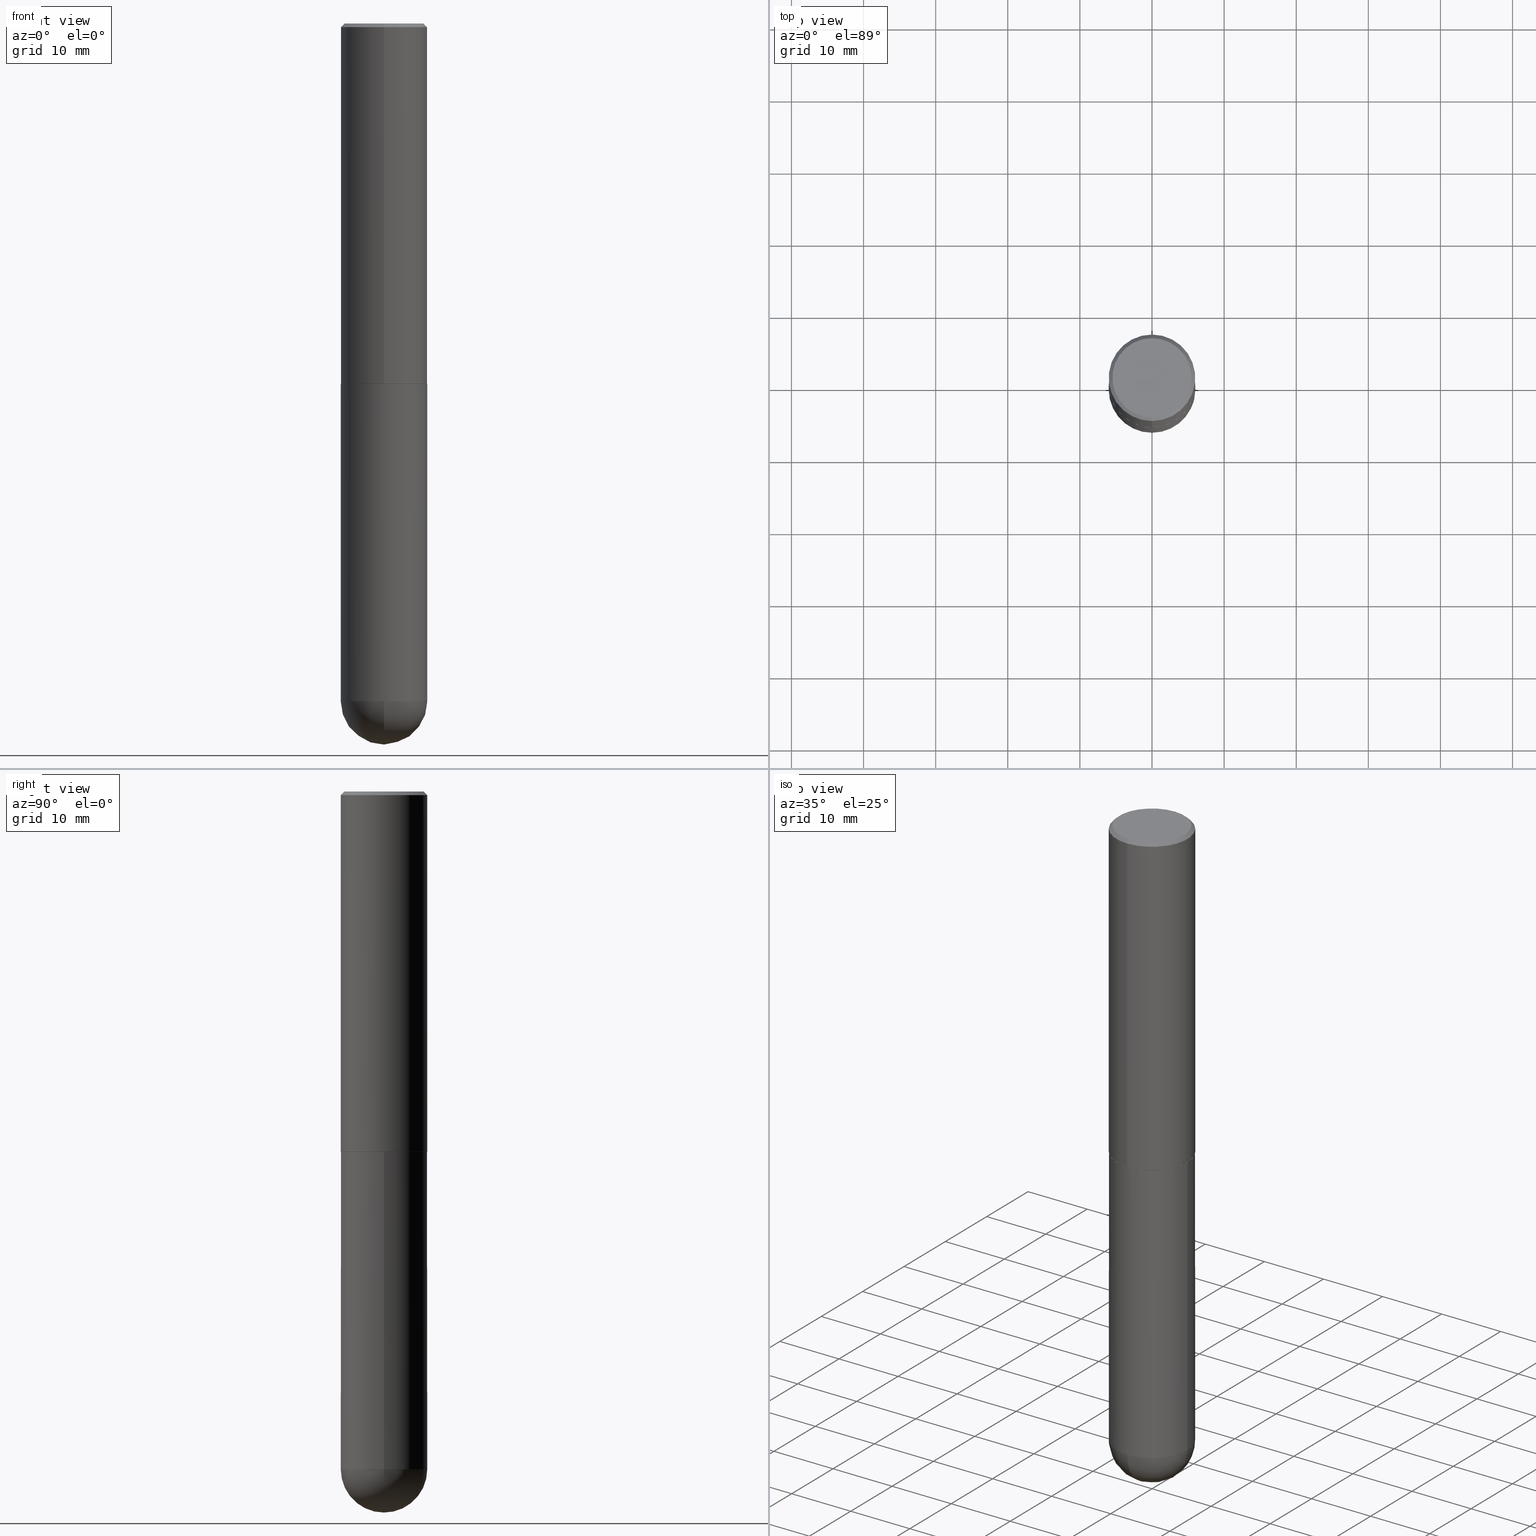
[diagram: canonical four-view strip — front | top / right | iso, engineering-drawing reading convention]
A machine part, canonical four-view strip (front | top / right | iso — engineering-drawing reading convention). The complete STEP part file that produces these views, byte-faithful:
ISO-10303-21;
HEADER;
FILE_DESCRIPTION (( 'STEP AP203' ),
    '1' );
FILE_NAME ('70539.STEP',
    '2024-04-10T12:34:48',
    ( '' ),
    ( '' ),
    'SwSTEP 2.0',
    'SolidWorks 2023',
    '' );
FILE_SCHEMA (( 'CONFIG_CONTROL_DESIGN' ));
ENDSEC;

DATA;
#1 = DIRECTION ( 'NONE',  ( -6.982962677686265922E-15, -1.000000000000000000, 3.490229039397398317E-15 ) ) ;
#2 = ORIENTED_EDGE ( 'NONE', *, *, #186, .F. ) ;
#3 = DIRECTION ( 'NONE',  ( -6.982962677686265922E-15, -1.000000000000000000, 3.487819265831411744E-15 ) ) ;
#4 = DATE_TIME_ROLE ( 'creation_date' ) ;
#5 = CIRCLE ( 'NONE', #134, 0.2361999999999999933 ) ;
#6 = APPLICATION_PROTOCOL_DEFINITION ( 'international standard', 'config_control_design', 1994, #306 ) ;
#7 = DESIGN_CONTEXT ( 'detailed design', #306, 'design' ) ;
#8 = ORIENTED_EDGE ( 'NONE', *, *, #66, .F. ) ;
#9 = EDGE_CURVE ( 'NONE', #224, #274, #254, .T. ) ;
#10 = CARTESIAN_POINT ( 'NONE',  ( 1.678301941865357183E-15, 0.2362000000000001043, -8.243920991056659143E-16 ) ) ;
#12 = PERSON_AND_ORGANIZATION ( #142, #323 ) ;
#11 = PERSON_AND_ORGANIZATION ( #142, #323 ) ;
#13 = CARTESIAN_POINT ( 'NONE',  ( -1.678301941865268633E-15, -0.2362000000000132882, -3.700799999999998757 ) ) ;
#14 = FACE_OUTER_BOUND ( 'NONE', #144, .T. ) ;
#15 = CIRCLE ( 'NONE', #105, 0.2361999999999999933 ) ;
#16 = LENGTH_MEASURE_WITH_UNIT ( LENGTH_MEASURE( 0.02539999999999999897 ), #378 );
#17 = LINE ( 'NONE', #370, #337 ) ;
#18 = AXIS2_PLACEMENT_3D ( 'NONE', #159, #232, #396 ) ;
#19 = LOCAL_TIME ( 8, 34, 48.00000000000000000, #401 ) ;
#20 = PRODUCT_DEFINITION ( 'UNKNOWN', '', #131, #7 ) ;
#21 = CARTESIAN_POINT ( 'NONE',  ( 1.509716530915770323E-15, 0.2161999999999999478, -7.440516106625514919E-16 ) ) ;
#22 = AXIS2_PLACEMENT_3D ( 'NONE', #203, #402, #272 ) ;
#23 = ORIENTED_EDGE ( 'NONE', *, *, #320, .T. ) ;
#24 = PRODUCT_RELATED_PRODUCT_CATEGORY ( 'detail', '', ( #399 ) ) ;
#25 = ORIENTED_EDGE ( 'NONE', *, *, #75, .F. ) ;
#26 = ORIENTED_EDGE ( 'NONE', *, *, #75, .T. ) ;
#27 = CARTESIAN_POINT ( 'NONE',  ( -1.649375784469449391E-15, -0.2362000000000070710, -1.967499999999999361 ) ) ;
#28 = DIRECTION ( 'NONE',  ( -2.445468806185136597E-29, 3.491481338843145583E-15, 1.000000000000000000 ) ) ;
#29 = EDGE_CURVE ( 'NONE', #176, #346, #160, .T. ) ;
#30 = DATE_AND_TIME ( #373, #19 ) ;
#31 = ORIENTED_EDGE ( 'NONE', *, *, #258, .F. ) ;
#32 = CARTESIAN_POINT ( 'NONE',  ( 1.678301941865381835E-15, 0.2361999999999933597, -1.967500000000001137 ) ) ;
#33 = EDGE_LOOP ( 'NONE', ( #115, #310 ) ) ;
#34 = DIRECTION ( 'NONE',  ( -6.982962677686265133E-15, -1.000000000000000000, 3.484499991918703113E-15 ) ) ;
#35 = EDGE_LOOP ( 'NONE', ( #241, #180, #211, #26 ) ) ;
#36 = CARTESIAN_POINT ( 'NONE',  ( 1.649375784469544054E-15, 0.2361999999999931377, -1.968500000000000805 ) ) ;
#37 = AXIS2_PLACEMENT_3D ( 'NONE', #286, #56, #225 ) ;
#38 = APPROVAL ( #395, 'UNSPECIFIED' ) ;
#39 = CALENDAR_DATE ( 2024, 10, 4 ) ;
#40 = CARTESIAN_POINT ( 'NONE',  ( -1.620449627073635079E-15, -0.2362000000000000766, -0.01999999999999922673 ) ) ;
#41 = EDGE_CURVE ( 'NONE', #82, #176, #17, .T. ) ;
#42 = APPLICATION_PROTOCOL_DEFINITION ( 'international standard', 'config_control_design', 1994, #72 ) ;
#43 = CARTESIAN_POINT ( 'NONE',  ( -1.551844647095919747E-15, -0.2161999999999999478, 7.756593336280488957E-16 ) ) ;
#44 = COORDINATED_UNIVERSAL_TIME_OFFSET ( 5, 0, .BEHIND. ) ;
#45 = FACE_OUTER_BOUND ( 'NONE', #64, .T. ) ;
#46 = DIRECTION ( 'NONE',  ( -2.445468806185136597E-29, 3.491481338843145583E-15, 1.000000000000000000 ) ) ;
#47 = PLANE ( 'NONE',  #50 ) ;
#48 = CYLINDRICAL_SURFACE ( 'NONE', #389, 0.2361999999999999933 ) ;
#49 = ADVANCED_FACE ( 'NONE', ( #74 ), #179, .T. ) ;
#50 = AXIS2_PLACEMENT_3D ( 'NONE', #406, #166, #347 ) ;
#51 = ORIENTED_EDGE ( 'NONE', *, *, #262, .T. ) ;
#52 = ORIENTED_EDGE ( 'NONE', *, *, #405, .T. ) ;
#53 = CARTESIAN_POINT ( 'NONE',  ( 1.579546157692633424E-15, 0.2161999999999999478, -7.335157030073857892E-16 ) ) ;
#54 = ADVANCED_FACE ( 'NONE', ( #45 ), #168, .T. ) ;
#55 = EDGE_LOOP ( 'NONE', ( #137, #212, #408, #25 ) ) ;
#56 = DIRECTION ( 'NONE',  ( 1.000000000000000000, -6.982962677686265922E-15, 4.883557194083112340E-29 ) ) ;
#57 = DIRECTION ( 'NONE',  ( 0.000000000000000000, 0.000000000000000000, 1.000000000000000000 ) ) ;
#58 = VERTEX_POINT ( 'NONE', #226 ) ;
#59 = DIRECTION ( 'NONE',  ( -2.446343282214230400E-29, 3.490229039397398712E-15, 1.000000000000000000 ) ) ;
#60 = PERSON_AND_ORGANIZATION_ROLE ( 'creator' ) ;
#61 = VERTEX_POINT ( 'NONE', #96 ) ;
#62 = CARTESIAN_POINT ( 'NONE',  ( -0.2361999999999999933, 1.678301941865356591E-15, -1.161852468318208757E-29 ) ) ;
#63 = CARTESIAN_POINT ( 'NONE',  ( 9.306790425912204830E-29, -1.420568132046758614E-14, -3.937000000000000277 ) ) ;
#64 = EDGE_LOOP ( 'NONE', ( #380, #52, #279, #275 ) ) ;
#65 = DIRECTION ( 'NONE',  ( -6.982962677686265922E-15, -1.000000000000000000, 3.490229039397398712E-15 ) ) ;
#66 = EDGE_CURVE ( 'NONE', #141, #84, #15, .T. ) ;
#67 = CARTESIAN_POINT ( 'NONE',  ( -1.642392821791761602E-15, -0.2352000000000068480, -1.968499999999999250 ) ) ;
#68 = CIRCLE ( 'NONE', #302, 0.2362000000000002709 ) ;
#69 = PERSON_AND_ORGANIZATION_ROLE ( 'classification_officer' ) ;
#70 = DIRECTION ( 'NONE',  ( -6.982962677686265133E-15, -1.000000000000000000, 3.469747663417773847E-15 ) ) ;
#71 = APPROVAL_ROLE ( '' ) ;
#72 = APPLICATION_CONTEXT ( 'configuration controlled 3d designs of mechanical parts and assemblies' ) ;
#73 = AXIS2_PLACEMENT_3D ( 'NONE', #116, #59, #65 ) ;
#74 = FACE_OUTER_BOUND ( 'NONE', #343, .T. ) ;
#75 = EDGE_CURVE ( 'NONE', #58, #86, #327, .T. ) ;
#76 = DIRECTION ( 'NONE',  ( 1.000000000000000000, -6.982962677686265133E-15, 0.000000000000000000 ) ) ;
#77 = AXIS2_PLACEMENT_3D ( 'NONE', #21, #132, #204 ) ;
#78 = CARTESIAN_POINT ( 'NONE',  ( 8.719071180016067419E-29, -1.339545650693076387E-14, -3.700800000000000090 ) ) ;
#79 = ORIENTED_EDGE ( 'NONE', *, *, #200, .F. ) ;
#80 = DIRECTION ( 'NONE',  ( -1.000000000000000000, 6.982962677686265922E-15, -4.876176775795935793E-29 ) ) ;
#81 = CC_DESIGN_PERSON_AND_ORGANIZATION_ASSIGNMENT ( #250, #60, ( #20 ) ) ;
#82 = VERTEX_POINT ( 'NONE', #67 ) ;
#83 = ORIENTED_EDGE ( 'NONE', *, *, #91, .F. ) ;
#84 = VERTEX_POINT ( 'NONE', #13 ) ;
#85 = CC_DESIGN_SECURITY_CLASSIFICATION ( #169, ( #131 ) ) ;
#86 = VERTEX_POINT ( 'NONE', #40 ) ;
#87 = DIRECTION ( 'NONE',  ( -6.982962677686265133E-15, -1.000000000000000000, 3.484499991918703113E-15 ) ) ;
#88 = EDGE_CURVE ( 'NONE', #220, #141, #5, .T. ) ;
#89 = COORDINATED_UNIVERSAL_TIME_OFFSET ( 5, 0, .BEHIND. ) ;
#90 = PERSON_AND_ORGANIZATION_ROLE ( 'design_supplier' ) ;
#91 = EDGE_CURVE ( 'NONE', #107, #61, #196, .T. ) ;
#92 = DIRECTION ( 'NONE',  ( -1.000000000000000000, 6.982962677686265922E-15, -4.883557194083112901E-29 ) ) ;
#93 = DIRECTION ( 'NONE',  ( 1.000000000000000000, -6.982962677686265133E-15, 0.000000000000000000 ) ) ;
#94 = AXIS2_PLACEMENT_3D ( 'NONE', #102, #110, #3 ) ;
#95 = APPROVAL_PERSON_ORGANIZATION ( #12, #163, #259 ) ;
#96 = CARTESIAN_POINT ( 'NONE',  ( 0.2361999999999999933, -8.522356799982228232E-15, -1.968500000000000139 ) ) ;
#97 = ADVANCED_FACE ( 'NONE', ( #14 ), #356, .T. ) ;
#98 = VECTOR ( 'NONE', #101, 39.37007874015748143 ) ;
#99 = FACE_OUTER_BOUND ( 'NONE', #33, .T. ) ;
#100 = DIRECTION ( 'NONE',  ( 1.000000000000000000, -6.982962677686265133E-15, 0.000000000000000000 ) ) ;
#101 = DIRECTION ( 'NONE',  ( 4.937700262164545676E-15, 0.7071067811865447972, -0.7071067811865502373 ) ) ;
#102 = CARTESIAN_POINT ( 'NONE',  ( 4.892686564428472780E-31, -6.980458078794815271E-17, -0.02000000000000005246 ) ) ;
#103 = CC_DESIGN_PERSON_AND_ORGANIZATION_ASSIGNMENT ( #136, #374, ( #399 ) ) ;
#104 = DIRECTION ( 'NONE',  ( 5.024295867789091064E-15, 0.7071067811866947883, 0.7071067811864001351 ) ) ;
#105 = AXIS2_PLACEMENT_3D ( 'NONE', #235, #368, #76 ) ;
#106 = ORIENTED_EDGE ( 'NONE', *, *, #361, .F. ) ;
#107 = VERTEX_POINT ( 'NONE', #192 ) ;
#108 = VERTEX_POINT ( 'NONE', #63 ) ;
#109 = ORIENTED_EDGE ( 'NONE', *, *, #41, .T. ) ;
#110 = DIRECTION ( 'NONE',  ( -2.446343282214230400E-29, 3.490229039397398712E-15, 1.000000000000000000 ) ) ;
#111 = ORIENTED_EDGE ( 'NONE', *, *, #158, .T. ) ;
#112 = DIRECTION ( 'NONE',  ( 2.438088387897960049E-29, -3.491481338843145188E-15, -1.000000000000000000 ) ) ;
#113 = PERSON_AND_ORGANIZATION ( #142, #323 ) ;
#114 = ADVANCED_FACE ( 'NONE', ( #288 ), #270, .T. ) ;
#115 = ORIENTED_EDGE ( 'NONE', *, *, #9, .T. ) ;
#116 = CARTESIAN_POINT ( 'NONE',  ( 0.000000000000000000, 0.000000000000000000, 0.000000000000000000 ) ) ;
#117 = CYLINDRICAL_SURFACE ( 'NONE', #143, 0.2361999999999999933 ) ;
#118 = CARTESIAN_POINT ( 'NONE',  ( 8.719071180016067419E-29, -1.339545650693076387E-14, -3.700800000000000090 ) ) ;
#119 = DIRECTION ( 'NONE',  ( -2.446343282214230400E-29, 3.490229039397398712E-15, 1.000000000000000000 ) ) ;
#121 = APPROVAL_STATUS ( 'not_yet_approved' ) ;
#120 = COORDINATED_UNIVERSAL_TIME_OFFSET ( 5, 0, .BEHIND. ) ;
#122 = DIRECTION ( 'NONE',  ( -2.446343282214230400E-29, 3.490229039397398712E-15, 1.000000000000000000 ) ) ;
#123 = DIRECTION ( 'NONE',  ( -2.445468806185136597E-29, 3.491481338843145583E-15, 1.000000000000000000 ) ) ;
#124 = ADVANCED_FACE ( 'NONE', ( #334 ), #47, .F. ) ;
#125 = DIRECTION ( 'NONE',  ( -2.446343282214230400E-29, 3.490229039397398317E-15, 1.000000000000000000 ) ) ;
#126 = CIRCLE ( 'NONE', #228, 0.2351999999999999924 ) ;
#127 = DATE_AND_TIME ( #388, #265 ) ;
#128 =( NAMED_UNIT ( * ) PLANE_ANGLE_UNIT ( ) SI_UNIT ( $, .RADIAN. ) );
#129 = CARTESIAN_POINT ( 'NONE',  ( 9.050190957929953666E-29, -1.292127413879071357E-14, -3.700800000000000090 ) ) ;
#130 = CIRCLE ( 'NONE', #161, 0.2161999999999999478 ) ;
#131 = PRODUCT_DEFINITION_FORMATION_WITH_SPECIFIED_SOURCE ( 'ANY', '', #399, .NOT_KNOWN. ) ;
#132 = DIRECTION ( 'NONE',  ( 2.446343282214230400E-29, -3.490229039397398317E-15, -1.000000000000000000 ) ) ;
#133 = ADVANCED_FACE ( 'NONE', ( #282 ), #213, .F. ) ;
#134 = AXIS2_PLACEMENT_3D ( 'NONE', #154, #391, #93 ) ;
#135 = CARTESIAN_POINT ( 'NONE',  ( -0.2361999999999999933, -8.218825635286365458E-15, -1.968500000000000139 ) ) ;
#136 = PERSON_AND_ORGANIZATION ( #142, #323 ) ;
#137 = ORIENTED_EDGE ( 'NONE', *, *, #262, .F. ) ;
#138 = ADVANCED_FACE ( 'NONE', ( #385 ), #383, .T. ) ;
#139 = CARTESIAN_POINT ( 'NONE',  ( 1.674749228186604602E-15, 0.2351999999999931368, -1.968500000000000805 ) ) ;
#140 = ORIENTED_EDGE ( 'NONE', *, *, #392, .F. ) ;
#141 = VERTEX_POINT ( 'NONE', #152 ) ;
#142 = PERSON ( 'UNSPECIFIED', 'UNSPECIFIED', 'UNSPECIFIED', ('UNSPECIFIED'), ('UNSPECIFIED'), ('UNSPECIFIED') ) ;
#143 = AXIS2_PLACEMENT_3D ( 'NONE', #313, #28, #317 ) ;
#144 = EDGE_LOOP ( 'NONE', ( #248, #148, #251, #353 ) ) ;
#145 = CYLINDRICAL_SURFACE ( 'NONE', #73, 0.2362000000000001043 ) ;
#146 = ORIENTED_EDGE ( 'NONE', *, *, #172, .T. ) ;
#147 = CARTESIAN_POINT ( 'NONE',  ( 4.813180407756499025E-29, -6.867025635014382393E-15, -1.967500000000000249 ) ) ;
#148 = ORIENTED_EDGE ( 'NONE', *, *, #186, .T. ) ;
#149 = DIRECTION ( 'NONE',  ( -4.851104656540961908E-15, -0.7071067811865496822, -0.7071067811865453523 ) ) ;
#150 = UNCERTAINTY_MEASURE_WITH_UNIT (LENGTH_MEASURE( 1.000000000000000082E-05 ), #292, 'distance_accuracy_value', 'NONE');
#151 = ORIENTED_EDGE ( 'NONE', *, *, #297, .F. ) ;
#152 = CARTESIAN_POINT ( 'NONE',  ( -0.2361999999999999933, -8.218825635286368613E-15, -3.700800000000000090 ) ) ;
#153 = CARTESIAN_POINT ( 'NONE',  ( 0.000000000000000000, 0.000000000000000000, 0.000000000000000000 ) ) ;
#154 = CARTESIAN_POINT ( 'NONE',  ( 9.050190957929953666E-29, -1.292127413879071357E-14, -3.700800000000000090 ) ) ;
#155 = EDGE_CURVE ( 'NONE', #312, #82, #126, .T. ) ;
#156 = CALENDAR_DATE ( 2024, 10, 4 ) ;
#157 = AXIS2_PLACEMENT_3D ( 'NONE', #129, #170, #100 ) ;
#158 = EDGE_CURVE ( 'NONE', #141, #381, #222, .T. ) ;
#159 = CARTESIAN_POINT ( 'NONE',  ( 4.815626751038712846E-29, -6.870515864053779706E-15, -1.968500000000000139 ) ) ;
#160 = CIRCLE ( 'NONE', #227, 0.2362000000000002153 ) ;
#161 = AXIS2_PLACEMENT_3D ( 'NONE', #202, #175, #243 ) ;
#162 = APPROVAL_PERSON_ORGANIZATION ( #113, #305, #71 ) ;
#163 = APPROVAL ( #121, 'UNSPECIFIED' ) ;
#164 = DIRECTION ( 'NONE',  ( 1.000000000000000000, -6.982962677686269077E-15, 0.000000000000000000 ) ) ;
#165 = DIRECTION ( 'NONE',  ( -6.982962677686265922E-15, -1.000000000000000000, 3.490229039397398712E-15 ) ) ;
#166 = DIRECTION ( 'NONE',  ( -2.446343282214230400E-29, 3.490229039397398317E-15, 1.000000000000000000 ) ) ;
#167 = DIRECTION ( 'NONE',  ( -7.105427357601001070E-15, -1.000000000000000000, 0.000000000000000000 ) ) ;
#168 = CONICAL_SURFACE ( 'NONE', #18, 0.2351999999999999924, 0.7853981633976532262 ) ;
#169 = SECURITY_CLASSIFICATION ( '', '', #183 ) ;
#170 = DIRECTION ( 'NONE',  ( -2.445468806185136597E-29, 3.491481338843145583E-15, 1.000000000000000000 ) ) ;
#171 = EDGE_LOOP ( 'NONE', ( #318, #184 ) ) ;
#172 = EDGE_CURVE ( 'NONE', #274, #86, #185, .T. ) ;
#173 = ORIENTED_EDGE ( 'NONE', *, *, #195, .F. ) ;
#174 = CARTESIAN_POINT ( 'NONE',  ( 4.815626751038712846E-29, -6.870515864053779706E-15, -1.968500000000000139 ) ) ;
#175 = DIRECTION ( 'NONE',  ( -2.446343282214230400E-29, 3.490229039397398712E-15, 1.000000000000000000 ) ) ;
#176 = VERTEX_POINT ( 'NONE', #27 ) ;
#177 = EDGE_LOOP ( 'NONE', ( #2, #23, #8, #216 ) ) ;
#178 = LINE ( 'NONE', #242, #338 ) ;
#179 = CONICAL_SURFACE ( 'NONE', #260, 0.2361999999999999933, 0.7853981633974479459 ) ;
#180 = ORIENTED_EDGE ( 'NONE', *, *, #9, .F. ) ;
#181 = CARTESIAN_POINT ( 'NONE',  ( 9.050190957929953666E-29, -1.292127413879071357E-14, -3.700800000000000090 ) ) ;
#182 = CARTESIAN_POINT ( 'NONE',  ( -5.154889382848865160E-46, 7.354546170893803255E-32, 2.107181531033159333E-17 ) ) ;
#183 = SECURITY_CLASSIFICATION_LEVEL ( 'unclassified' ) ;
#184 = ORIENTED_EDGE ( 'NONE', *, *, #361, .T. ) ;
#185 = LINE ( 'NONE', #319, #407 ) ;
#186 = EDGE_CURVE ( 'NONE', #108, #220, #255, .T. ) ;
#187 = VECTOR ( 'NONE', #125, 39.37007874015748143 ) ;
#188 = CC_DESIGN_APPROVAL ( #163, ( #20 ) ) ;
#189 = CARTESIAN_POINT ( 'NONE',  ( 4.813180407756499025E-29, -6.867025635014382393E-15, -1.967500000000000249 ) ) ;
#190 = EDGE_CURVE ( 'NONE', #84, #107, #372, .T. ) ;
#191 = APPROVAL_DATE_TIME ( #127, #305 ) ;
#192 = CARTESIAN_POINT ( 'NONE',  ( 0.2361999999999999933, -1.154650336162122153E-14, -3.700800000000000090 ) ) ;
#193 = FACE_OUTER_BOUND ( 'NONE', #35, .T. ) ;
#194 = CC_DESIGN_APPROVAL ( #38, ( #131 ) ) ;
#195 = EDGE_CURVE ( 'NONE', #86, #58, #218, .T. ) ;
#196 = LINE ( 'NONE', #301, #233 ) ;
#197 = CYLINDRICAL_SURFACE ( 'NONE', #314, 0.2362000000000001043 ) ;
#198 = CARTESIAN_POINT ( 'NONE',  ( 4.892686564428472780E-31, -6.980458078794815271E-17, -0.02000000000000005246 ) ) ;
#199 = FACE_OUTER_BOUND ( 'NONE', #384, .T. ) ;
#200 = EDGE_CURVE ( 'NONE', #176, #86, #178, .T. ) ;
#201 = AXIS2_PLACEMENT_3D ( 'NONE', #382, #283, #237 ) ;
#202 = CARTESIAN_POINT ( 'NONE',  ( -5.154889382848865160E-46, 7.354546170893803255E-32, 2.107181531033159333E-17 ) ) ;
#203 = CARTESIAN_POINT ( 'NONE',  ( 8.719071180016067419E-29, -1.339545650693076387E-14, -3.700800000000000090 ) ) ;
#204 = DIRECTION ( 'NONE',  ( 6.982962677686265922E-15, 1.000000000000000000, -3.490229039397398317E-15 ) ) ;
#205 = AXIS2_PLACEMENT_3D ( 'NONE', #350, #344, #87 ) ;
#206 = CC_DESIGN_PERSON_AND_ORGANIZATION_ASSIGNMENT ( #359, #223, ( #131 ) ) ;
#207 = CONICAL_SURFACE ( 'NONE', #264, 0.2361999999999999933, 0.7853981633974479459 ) ;
#208 = ADVANCED_FACE ( 'NONE', ( #412 ), #145, .T. ) ;
#209 = ORIENTED_EDGE ( 'NONE', *, *, #29, .T. ) ;
#210 = DIRECTION ( 'NONE',  ( 1.000000000000000000, -6.982962677686265133E-15, 0.000000000000000000 ) ) ;
#211 = ORIENTED_EDGE ( 'NONE', *, *, #392, .T. ) ;
#212 = ORIENTED_EDGE ( 'NONE', *, *, #258, .T. ) ;
#213 = PLANE ( 'NONE',  #400 ) ;
#214 = DIRECTION ( 'NONE',  ( 1.000000000000000000, -6.982962677686266711E-15, 4.876176775795936353E-29 ) ) ;
#215 = ORIENTED_EDGE ( 'NONE', *, *, #405, .F. ) ;
#216 = ORIENTED_EDGE ( 'NONE', *, *, #88, .F. ) ;
#217 = MANIFOLD_SOLID_BREP ( 'Body-Move/Copy2[2]', #367 ) ;
#218 = CIRCLE ( 'NONE', #94, 0.2361999999999999933 ) ;
#219 = LOCAL_TIME ( 8, 34, 48.00000000000000000, #89 ) ;
#220 = VERTEX_POINT ( 'NONE', #377 ) ;
#221 = MANIFOLD_SOLID_BREP ( 'Body-Move/Copy2[1]', #358 ) ;
#222 = LINE ( 'NONE', #62, #287 ) ;
#223 = PERSON_AND_ORGANIZATION_ROLE ( 'creator' ) ;
#224 = VERTEX_POINT ( 'NONE', #53 ) ;
#225 = DIRECTION ( 'NONE',  ( 6.982962677686265922E-15, 1.000000000000000000, 0.000000000000000000 ) ) ;
#226 = CARTESIAN_POINT ( 'NONE',  ( 1.649375784469496525E-15, 0.2361999999999999378, -0.02000000000000087472 ) ) ;
#227 = AXIS2_PLACEMENT_3D ( 'NONE', #189, #119, #257 ) ;
#228 = AXIS2_PLACEMENT_3D ( 'NONE', #276, #409, #34 ) ;
#229 = DATE_AND_TIME ( #390, #328 ) ;
#230 = DATE_AND_TIME ( #39, #219 ) ;
#231 = APPROVAL_DATE_TIME ( #229, #38 ) ;
#232 = DIRECTION ( 'NONE',  ( -2.446343282214230400E-29, 3.490229039397398712E-15, 1.000000000000000000 ) ) ;
#233 = VECTOR ( 'NONE', #236, 39.37007874015748143 ) ;
#234 = LOCAL_TIME ( 8, 34, 48.00000000000000000, #120 ) ;
#235 = CARTESIAN_POINT ( 'NONE',  ( 9.050190957929953666E-29, -1.292127413879071357E-14, -3.700800000000000090 ) ) ;
#236 = DIRECTION ( 'NONE',  ( -2.445468806185136877E-29, 3.491481338843145188E-15, 1.000000000000000000 ) ) ;
#237 = DIRECTION ( 'NONE',  ( 1.000000000000000000, -6.982962677686269077E-15, 0.000000000000000000 ) ) ;
#238 = PERSON_AND_ORGANIZATION ( #142, #323 ) ;
#239 = AXIS2_PLACEMENT_3D ( 'NONE', #410, #46, #164 ) ;
#240 = EDGE_CURVE ( 'NONE', #82, #312, #278, .T. ) ;
#241 = ORIENTED_EDGE ( 'NONE', *, *, #172, .F. ) ;
#242 = CARTESIAN_POINT ( 'NONE',  ( -1.649375784469496722E-15, -0.2362000000000001043, 8.243920991056659143E-16 ) ) ;
#243 = DIRECTION ( 'NONE',  ( -6.982962677686265922E-15, -1.000000000000000000, 3.490229039397398317E-15 ) ) ;
#244 = CIRCLE ( 'NONE', #239, 0.2361999999999999933 ) ;
#245 = ORIENTED_EDGE ( 'NONE', *, *, #309, .F. ) ;
#246 = ORIENTED_EDGE ( 'NONE', *, *, #240, .F. ) ;
#247 = ORIENTED_EDGE ( 'NONE', *, *, #91, .T. ) ;
#248 = ORIENTED_EDGE ( 'NONE', *, *, #320, .F. ) ;
#249 = DIRECTION ( 'NONE',  ( -2.446343282214230400E-29, 3.490229039397398712E-15, 1.000000000000000000 ) ) ;
#250 = PERSON_AND_ORGANIZATION ( #142, #323 ) ;
#251 = ORIENTED_EDGE ( 'NONE', *, *, #289, .F. ) ;
#252 = DIRECTION ( 'NONE',  ( -2.445468806185136877E-29, 3.491481338843145188E-15, 1.000000000000000000 ) ) ;
#253 = SHAPE_DEFINITION_REPRESENTATION ( #333, #335 ) ;
#254 = CIRCLE ( 'NONE', #387, 0.2161999999999999478 ) ;
#255 = CIRCLE ( 'NONE', #37, 0.2362000000000002709 ) ;
#256 = ORIENTED_EDGE ( 'NONE', *, *, #88, .T. ) ;
#257 = DIRECTION ( 'NONE',  ( -6.982962677686265133E-15, -1.000000000000000000, 3.469747663417773847E-15 ) ) ;
#258 = EDGE_CURVE ( 'NONE', #346, #176, #322, .T. ) ;
#259 = APPROVAL_ROLE ( '' ) ;
#260 = AXIS2_PLACEMENT_3D ( 'NONE', #263, #324, #293 ) ;
#261 = AXIS2_PLACEMENT_3D ( 'NONE', #153, #57, #363 ) ;
#262 = EDGE_CURVE ( 'NONE', #346, #58, #295, .T. ) ;
#263 = CARTESIAN_POINT ( 'NONE',  ( 4.892686564428472780E-31, -6.980458078794815271E-17, -0.02000000000000005246 ) ) ;
#264 = AXIS2_PLACEMENT_3D ( 'NONE', #393, #300, #326 ) ;
#265 = LOCAL_TIME ( 8, 34, 48.00000000000000000, #325 ) ;
#266 = ADVANCED_FACE ( 'NONE', ( #193 ), #207, .T. ) ;
#267 = CARTESIAN_POINT ( 'NONE',  ( 0.000000000000000000, 0.000000000000000000, 0.000000000000000000 ) ) ;
#268 = APPROVAL_PERSON_ORGANIZATION ( #238, #38, #294 ) ;
#269 = CC_DESIGN_PERSON_AND_ORGANIZATION_ASSIGNMENT ( #364, #69, ( #169 ) ) ;
#270 = SPHERICAL_SURFACE ( 'NONE', #22, 0.2362000000000002709 ) ;
#271 = LINE ( 'NONE', #404, #98 ) ;
#272 = DIRECTION ( 'NONE',  ( 6.982962677686265922E-15, 1.000000000000000000, -4.626330217890364603E-15 ) ) ;
#273 = LINE ( 'NONE', #340, #348 ) ;
#274 = VERTEX_POINT ( 'NONE', #43 ) ;
#275 = ORIENTED_EDGE ( 'NONE', *, *, #41, .F. ) ;
#276 = CARTESIAN_POINT ( 'NONE',  ( 4.815626751038712846E-29, -6.870515864053779706E-15, -1.968500000000000139 ) ) ;
#277 = CC_DESIGN_DATE_AND_TIME_ASSIGNMENT ( #30, #4, ( #20 ) ) ;
#278 = CIRCLE ( 'NONE', #307, 0.2351999999999999924 ) ;
#279 = ORIENTED_EDGE ( 'NONE', *, *, #29, .F. ) ;
#280 = ORIENTED_EDGE ( 'NONE', *, *, #66, .T. ) ;
#281 = DIRECTION ( 'NONE',  ( -2.446343282214230400E-29, 3.490229039397398712E-15, 1.000000000000000000 ) ) ;
#282 = FACE_OUTER_BOUND ( 'NONE', #171, .T. ) ;
#283 = DIRECTION ( 'NONE',  ( -2.445468806185136597E-29, 3.491481338843145583E-15, 1.000000000000000000 ) ) ;
#284 = DIRECTION ( 'NONE',  ( 6.982962677686265922E-15, 1.000000000000000000, -4.626330217890364603E-15 ) ) ;
#285 = ORIENTED_EDGE ( 'NONE', *, *, #155, .T. ) ;
#286 = CARTESIAN_POINT ( 'NONE',  ( 8.719071180016067419E-29, -1.339545650693076387E-14, -3.700800000000000090 ) ) ;
#287 = VECTOR ( 'NONE', #252, 39.37007874015748143 ) ;
#288 = FACE_OUTER_BOUND ( 'NONE', #177, .T. ) ;
#289 = EDGE_CURVE ( 'NONE', #107, #220, #397, .T. ) ;
#290 = ORIENTED_EDGE ( 'NONE', *, *, #195, .T. ) ;
#291 = DIMENSIONAL_EXPONENTS ( 1.000000000000000000, 0.000000000000000000, 0.000000000000000000, 0.000000000000000000, 0.000000000000000000, 0.000000000000000000, 0.000000000000000000 ) ;
#292 =( CONVERSION_BASED_UNIT ( 'INCH', #16 ) LENGTH_UNIT ( ) NAMED_UNIT ( #291 ) );
#293 = DIRECTION ( 'NONE',  ( 6.982962677686265922E-15, 1.000000000000000000, -3.487819265831411744E-15 ) ) ;
#294 = APPROVAL_ROLE ( '' ) ;
#295 = LINE ( 'NONE', #10, #187 ) ;
#296 = APPROVAL_STATUS ( 'not_yet_approved' ) ;
#297 = EDGE_CURVE ( 'NONE', #274, #224, #130, .T. ) ;
#298 = AXIS2_PLACEMENT_3D ( 'NONE', #118, #92, #284 ) ;
#299 = APPROVAL_DATE_TIME ( #230, #163 ) ;
#300 = DIRECTION ( 'NONE',  ( 2.446343282214230400E-29, -3.490229039397398712E-15, -1.000000000000000000 ) ) ;
#301 = CARTESIAN_POINT ( 'NONE',  ( 0.2361999999999999933, -1.649375784469496131E-15, 1.151752954443000088E-29 ) ) ;
#302 = AXIS2_PLACEMENT_3D ( 'NONE', #78, #336, #167 ) ;
#303 = PLANE ( 'NONE',  #77 ) ;
#304 = FACE_OUTER_BOUND ( 'NONE', #349, .T. ) ;
#305 = APPROVAL ( #296, 'UNSPECIFIED' ) ;
#306 = APPLICATION_CONTEXT ( 'configuration controlled 3d designs of mechanical parts and assemblies' ) ;
#307 = AXIS2_PLACEMENT_3D ( 'NONE', #174, #249, #316 ) ;
#308 = ORIENTED_EDGE ( 'NONE', *, *, #190, .T. ) ;
#309 = EDGE_CURVE ( 'NONE', #61, #381, #244, .T. ) ;
#310 = ORIENTED_EDGE ( 'NONE', *, *, #297, .T. ) ;
#311 = DIRECTION ( 'NONE',  ( -2.445468806185136597E-29, 3.491481338843145583E-15, 1.000000000000000000 ) ) ;
#312 = VERTEX_POINT ( 'NONE', #139 ) ;
#313 = CARTESIAN_POINT ( 'NONE',  ( 0.000000000000000000, 0.000000000000000000, 0.000000000000000000 ) ) ;
#314 = AXIS2_PLACEMENT_3D ( 'NONE', #267, #330, #165 ) ;
#315 = ORIENTED_EDGE ( 'NONE', *, *, #158, .F. ) ;
#316 = DIRECTION ( 'NONE',  ( -6.982962677686265133E-15, -1.000000000000000000, 3.484499991918703113E-15 ) ) ;
#317 = DIRECTION ( 'NONE',  ( 1.000000000000000000, -6.982962677686266711E-15, 4.876176775795936353E-29 ) ) ;
#318 = ORIENTED_EDGE ( 'NONE', *, *, #309, .T. ) ;
#319 = CARTESIAN_POINT ( 'NONE',  ( -1.620449627073635079E-15, -0.2362000000000000766, -0.01999999999999922673 ) ) ;
#320 = EDGE_CURVE ( 'NONE', #108, #84, #68, .T. ) ;
#321 = ORIENTED_EDGE ( 'NONE', *, *, #289, .T. ) ;
#322 = CIRCLE ( 'NONE', #360, 0.2362000000000002153 ) ;
#323 = ORGANIZATION ( 'UNSPECIFIED', 'UNSPECIFIED', '' ) ;
#324 = DIRECTION ( 'NONE',  ( 2.446343282214230400E-29, -3.490229039397398712E-15, -1.000000000000000000 ) ) ;
#325 = COORDINATED_UNIVERSAL_TIME_OFFSET ( 5, 0, .BEHIND. ) ;
#326 = DIRECTION ( 'NONE',  ( 6.982962677686265922E-15, 1.000000000000000000, -3.487819265831411744E-15 ) ) ;
#327 = CIRCLE ( 'NONE', #394, 0.2361999999999999933 ) ;
#328 = LOCAL_TIME ( 8, 34, 48.00000000000000000, #44 ) ;
#329 = ADVANCED_FACE ( 'NONE', ( #304 ), #48, .T. ) ;
#330 = DIRECTION ( 'NONE',  ( -2.446343282214230400E-29, 3.490229039397398712E-15, 1.000000000000000000 ) ) ;
#331 = CIRCLE ( 'NONE', #201, 0.2361999999999999933 ) ;
#332 =( GEOMETRIC_REPRESENTATION_CONTEXT ( 3 ) GLOBAL_UNCERTAINTY_ASSIGNED_CONTEXT ( ( #150 ) ) GLOBAL_UNIT_ASSIGNED_CONTEXT ( ( #292, #128, #362 ) ) REPRESENTATION_CONTEXT ( 'NONE', 'WORKASPACE' ) );
#333 = PRODUCT_DEFINITION_SHAPE ( 'NONE', 'NONE',  #20 ) ;
#334 = FACE_OUTER_BOUND ( 'NONE', #411, .T. ) ;
#335 = ADVANCED_BREP_SHAPE_REPRESENTATION ( '70539', ( #221, #217, #261 ), #332 ) ;
#336 = DIRECTION ( 'NONE',  ( -1.000000000000000000, 7.105427357601001070E-15, -4.926315508542082329E-29 ) ) ;
#337 = VECTOR ( 'NONE', #386, 39.37007874015748854 ) ;
#338 = VECTOR ( 'NONE', #354, 39.37007874015748143 ) ;
#339 = CC_DESIGN_APPROVAL ( #305, ( #169 ) ) ;
#340 = CARTESIAN_POINT ( 'NONE',  ( 1.671196514507803309E-15, 0.2351999999999931368, -1.968500000000000805 ) ) ;
#341 = ADVANCED_FACE ( 'NONE', ( #345 ), #117, .T. ) ;
#342 = ORIENTED_EDGE ( 'NONE', *, *, #155, .F. ) ;
#343 = EDGE_LOOP ( 'NONE', ( #151, #146, #290, #140 ) ) ;
#344 = DIRECTION ( 'NONE',  ( -2.446343282214230400E-29, 3.490229039397398712E-15, 1.000000000000000000 ) ) ;
#345 = FACE_OUTER_BOUND ( 'NONE', #379, .T. ) ;
#346 = VERTEX_POINT ( 'NONE', #32 ) ;
#347 = DIRECTION ( 'NONE',  ( -6.982962677686265922E-15, -1.000000000000000000, 3.490229039397398317E-15 ) ) ;
#348 = VECTOR ( 'NONE', #104, 39.37007874015748854 ) ;
#349 = EDGE_LOOP ( 'NONE', ( #256, #111, #245, #83, #321 ) ) ;
#350 = CARTESIAN_POINT ( 'NONE',  ( 4.815626751038712846E-29, -6.870515864053779706E-15, -1.968500000000000139 ) ) ;
#351 = CC_DESIGN_PERSON_AND_ORGANIZATION_ASSIGNMENT ( #11, #90, ( #131 ) ) ;
#352 = DATE_AND_TIME ( #156, #234 ) ;
#353 = ORIENTED_EDGE ( 'NONE', *, *, #190, .F. ) ;
#354 = DIRECTION ( 'NONE',  ( -2.446343282214230400E-29, 3.490229039397398317E-15, 1.000000000000000000 ) ) ;
#355 = DATE_TIME_ROLE ( 'classification_date' ) ;
#356 = SPHERICAL_SURFACE ( 'NONE', #298, 0.2362000000000002709 ) ;
#357 = DIRECTION ( 'NONE',  ( -6.982962677686265922E-15, -1.000000000000000000, 3.487819265831411744E-15 ) ) ;
#358 = CLOSED_SHELL ( 'NONE', ( #329, #114, #97, #133, #341 ) ) ;
#359 = PERSON_AND_ORGANIZATION ( #142, #323 ) ;
#360 = AXIS2_PLACEMENT_3D ( 'NONE', #147, #365, #70 ) ;
#361 = EDGE_CURVE ( 'NONE', #381, #61, #331, .T. ) ;
#362 =( NAMED_UNIT ( * ) SI_UNIT ( $, .STERADIAN. ) SOLID_ANGLE_UNIT ( ) );
#363 = DIRECTION ( 'NONE',  ( 1.000000000000000000, 0.000000000000000000, 0.000000000000000000 ) ) ;
#364 = PERSON_AND_ORGANIZATION ( #142, #323 ) ;
#365 = DIRECTION ( 'NONE',  ( -2.446343282214230400E-29, 3.490229039397398712E-15, 1.000000000000000000 ) ) ;
#366 = MECHANICAL_CONTEXT ( 'NONE', #72, 'mechanical' ) ;
#367 = CLOSED_SHELL ( 'NONE', ( #54, #369, #49, #266, #208, #138, #124, #371 ) ) ;
#368 = DIRECTION ( 'NONE',  ( -2.445468806185136597E-29, 3.491481338843145583E-15, 1.000000000000000000 ) ) ;
#369 = ADVANCED_FACE ( 'NONE', ( #199 ), #197, .T. ) ;
#370 = CARTESIAN_POINT ( 'NONE',  ( -1.642392821791761602E-15, -0.2352000000000068480, -1.968499999999999250 ) ) ;
#371 = ADVANCED_FACE ( 'NONE', ( #99 ), #303, .F. ) ;
#372 = CIRCLE ( 'NONE', #375, 0.2361999999999999933 ) ;
#373 = CALENDAR_DATE ( 2024, 10, 4 ) ;
#374 = PERSON_AND_ORGANIZATION_ROLE ( 'design_owner' ) ;
#375 = AXIS2_PLACEMENT_3D ( 'NONE', #181, #311, #210 ) ;
#376 = EDGE_LOOP ( 'NONE', ( #215, #285, #109, #31 ) ) ;
#377 = CARTESIAN_POINT ( 'NONE',  ( 1.649375784469585666E-15, 0.2361999999999869759, -3.700800000000000978 ) ) ;
#378 =( LENGTH_UNIT ( ) NAMED_UNIT ( * ) SI_UNIT ( $, .METRE. ) );
#379 = EDGE_LOOP ( 'NONE', ( #315, #280, #308, #247, #106 ) ) ;
#380 = ORIENTED_EDGE ( 'NONE', *, *, #240, .T. ) ;
#381 = VERTEX_POINT ( 'NONE', #135 ) ;
#382 = CARTESIAN_POINT ( 'NONE',  ( 4.813905344975441835E-29, -6.872981015512731707E-15, -1.968500000000000139 ) ) ;
#383 = CONICAL_SURFACE ( 'NONE', #205, 0.2351999999999999924, 0.7853981633976532262 ) ;
#384 = EDGE_LOOP ( 'NONE', ( #209, #51, #173, #79 ) ) ;
#385 = FACE_OUTER_BOUND ( 'NONE', #376, .T. ) ;
#386 = DIRECTION ( 'NONE',  ( -4.937700262165559362E-15, -0.7071067811866899033, 0.7071067811864050201 ) ) ;
#387 = AXIS2_PLACEMENT_3D ( 'NONE', #182, #281, #1 ) ;
#388 = CALENDAR_DATE ( 2024, 10, 4 ) ;
#389 = AXIS2_PLACEMENT_3D ( 'NONE', #403, #123, #214 ) ;
#390 = CALENDAR_DATE ( 2024, 10, 4 ) ;
#391 = DIRECTION ( 'NONE',  ( -2.445468806185136597E-29, 3.491481338843145583E-15, 1.000000000000000000 ) ) ;
#392 = EDGE_CURVE ( 'NONE', #224, #58, #271, .T. ) ;
#393 = CARTESIAN_POINT ( 'NONE',  ( 4.892686564428472780E-31, -6.980458078794815271E-17, -0.02000000000000005246 ) ) ;
#394 = AXIS2_PLACEMENT_3D ( 'NONE', #198, #122, #357 ) ;
#395 = APPROVAL_STATUS ( 'not_yet_approved' ) ;
#396 = DIRECTION ( 'NONE',  ( -6.982962677686265133E-15, -1.000000000000000000, 3.484499991918703113E-15 ) ) ;
#397 = CIRCLE ( 'NONE', #157, 0.2361999999999999933 ) ;
#398 = CC_DESIGN_DATE_AND_TIME_ASSIGNMENT ( #352, #355, ( #169 ) ) ;
#399 = PRODUCT ( '70539', '70539', '', ( #366 ) ) ;
#400 = AXIS2_PLACEMENT_3D ( 'NONE', #36, #112, #80 ) ;
#401 = COORDINATED_UNIVERSAL_TIME_OFFSET ( 5, 0, .BEHIND. ) ;
#402 = DIRECTION ( 'NONE',  ( -1.000000000000000000, 6.982962677686265922E-15, -4.883557194083112901E-29 ) ) ;
#403 = CARTESIAN_POINT ( 'NONE',  ( 0.000000000000000000, 0.000000000000000000, 0.000000000000000000 ) ) ;
#404 = CARTESIAN_POINT ( 'NONE',  ( 1.649375784469496525E-15, 0.2361999999999999378, -0.02000000000000087472 ) ) ;
#405 = EDGE_CURVE ( 'NONE', #312, #346, #273, .T. ) ;
#406 = CARTESIAN_POINT ( 'NONE',  ( 4.815626751038712846E-29, -6.870515864053779706E-15, -1.968500000000000139 ) ) ;
#407 = VECTOR ( 'NONE', #149, 39.37007874015748143 ) ;
#408 = ORIENTED_EDGE ( 'NONE', *, *, #200, .T. ) ;
#409 = DIRECTION ( 'NONE',  ( -2.446343282214230400E-29, 3.490229039397398712E-15, 1.000000000000000000 ) ) ;
#410 = CARTESIAN_POINT ( 'NONE',  ( 4.813905344975441835E-29, -6.872981015512731707E-15, -1.968500000000000139 ) ) ;
#411 = EDGE_LOOP ( 'NONE', ( #246, #342 ) ) ;
#412 = FACE_OUTER_BOUND ( 'NONE', #55, .T. ) ;
ENDSEC;
END-ISO-10303-21;
